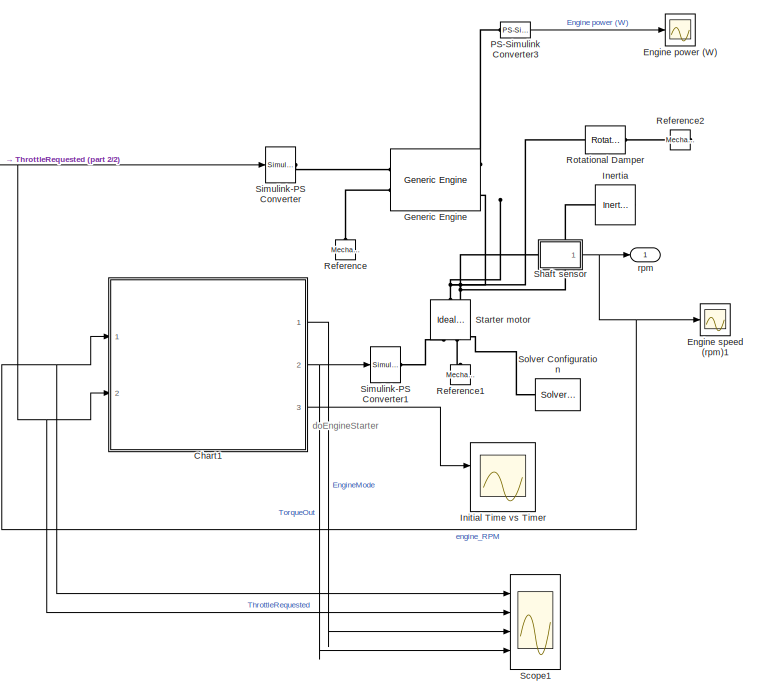
[diagram: root canvas - part 1/2, right side, full height]
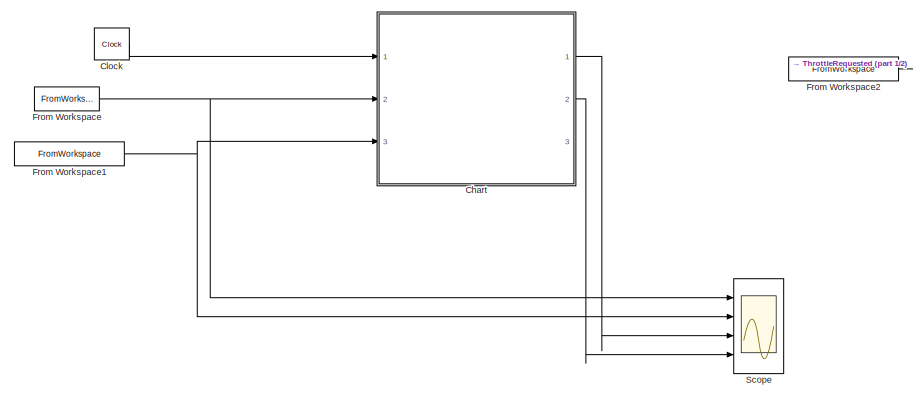
[diagram: root canvas - part 2/2, middle left region]
MODEL slx_adb9a68aac65
KIND model
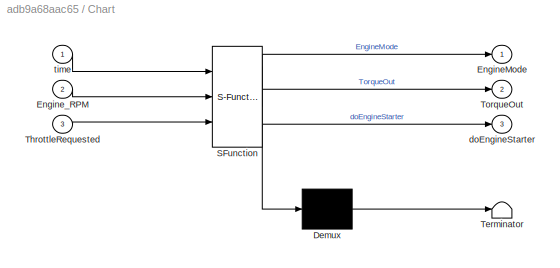
BLOCK [SubSystem] Chart
  Commented = on
  ErrorFcn = Stateflow.Translate.translate
  PermitHierarchicalResolution = ExplicitOnly
  Ports = [3, 3]
  RequestExecContextInheritance = off
  SFBlockType = Chart
  TreatAsAtomicUnit = on
BLOCK [Demux] Chart/ Demux 
  Outputs = 1
  Ports = [1, 1]
BLOCK [S-Function] Chart/ SFunction 
  EnableBusSupport = on
  FunctionName = sf_sfun
  PortCounts = [3 4]
  Ports = [3, 4]
  Tag = Stateflow S-Function Learn_EngineStartStop_11252014 1
BLOCK [Terminator] Chart/ Terminator 
BLOCK [Outport] Chart/EngineMode
  IconDisplay = Port number
BLOCK [Inport] Chart/Engine_RPM
  IconDisplay = Port number
  Port = 2
BLOCK [Inport] Chart/ThrottleRequested
  IconDisplay = Port number
  Port = 3
BLOCK [Outport] Chart/TorqueOut
  IconDisplay = Port number
  Port = 2
BLOCK [Outport] Chart/doEngineStarter
  IconDisplay = Port number
  Port = 3
BLOCK [Inport] Chart/time
  IconDisplay = Port number
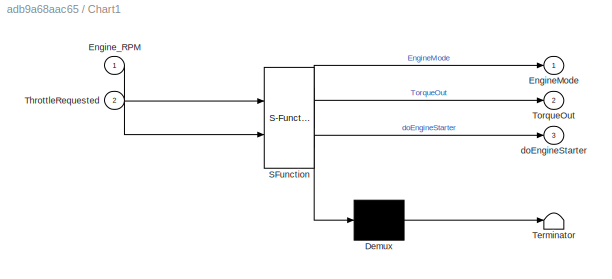
BLOCK [SubSystem] Chart1
  ErrorFcn = Stateflow.Translate.translate
  PermitHierarchicalResolution = ExplicitOnly
  Ports = [2, 3]
  RequestExecContextInheritance = off
  SFBlockType = Chart
  TreatAsAtomicUnit = on
BLOCK [Demux] Chart1/ Demux 
  Outputs = 1
  Ports = [1, 1]
BLOCK [S-Function] Chart1/ SFunction 
  EnableBusSupport = on
  FunctionName = sf_sfun
  PortCounts = [2 4]
  Ports = [2, 4]
  Tag = Stateflow S-Function Learn_EngineStartStop_11252014 2
BLOCK [Terminator] Chart1/ Terminator 
BLOCK [Outport] Chart1/EngineMode
  IconDisplay = Port number
BLOCK [Inport] Chart1/Engine_RPM
  IconDisplay = Port number
BLOCK [Inport] Chart1/ThrottleRequested
  IconDisplay = Port number
  Port = 2
BLOCK [Outport] Chart1/TorqueOut
  IconDisplay = Port number
  Port = 2
BLOCK [Outport] Chart1/doEngineStarter
  IconDisplay = Port number
  Port = 3
BLOCK [Clock] Clock
  Commented = on
BLOCK [Scope] Engine power (W)
  DataFormat = StructureWithTime
  Floating = off
  MaxDataPoints = 500000
  NumInputPorts = 1
  Ports = [1]
  SampleTime = 0.1
  SaveName = ScopeData1
  ShowLegends = off
  TimeRange = 150
  YMax = 150000
  YMin = -50000
  ZoomMode = xonly
BLOCK [Scope] Engine speed (rpm)1
  DataFormat = StructureWithTime
  Floating = off
  MaxDataPoints = 500000
  NumInputPorts = 1
  Ports = [1]
  SampleTime = 0.1
  SaveName = ScopeData6
  ShowLegends = off
  TimeRange = 150
  YMax = 4000
  YMin = 0
  ZoomMode = yonly
BLOCK [FromWorkspace] From Workspace
  Commented = on
  SampleTime = 0
  VariableName = Engine_RPM
  ZeroCross = on
BLOCK [FromWorkspace] From Workspace1
  Commented = on
  SampleTime = 0
  VariableName = ThrottleRequested
  ZeroCross = on
BLOCK [FromWorkspace] From Workspace2
  SampleTime = 0
  VariableName = ThrottleRequested
  ZeroCross = on
BLOCK [Reference] Generic Engine  REF=sdl_lib/Engines/Generic Engine
  ClassName = generic_engine
  ComponentPath = sdl.engines.generic_engine
  ComponentVariantNames = generic_engine
  ComponentVariants = sdl.engines.generic_engine
  LogSimulationData = off
  P_max = 10
  P_max_unit = HP
  Ports = [0, 0, 0, 0, 0, 2, 3]
  SchemaVersion = 1
  SourceBlock = sdl_lib/Engines/Generic Engine
  SourceFile = sdl.engines.generic_engine
  SourceType = Generic Engine
  T0 = 0
  T0_unit = 1
  bmep_tab = [ 0 250 500 625 750 1000 1.15e+3 1.25e+3 ]
  bmep_tab_unit = kPa
  bsfc_tab = [ 410 380 300 280 270 290 320 380; 410 370 290 270 260 270 285 320; 415 380 290 275 265 270 270 300; 420 390 310 290 285 280 280 285; 430 410 340 320 310 300 310 320; 450 430 370 340 330 330 350 380 ]
  bsfc_tab_unit = g/hr/kW
  displaced_volume = 400
  displaced_volume_unit = cm^3
  engine_type = 1
  engine_type_unit = 1
  fc_interp_method = 1
  fc_interp_method_unit = 1
  fc_model = 1
  fc_model_unit = 1
  fc_per_rev = 25
  fc_per_rev_unit = mg/rev
  fc_tab = [ 0.5 0.9 1.4 1.6 1.9 2.7 3.4 4.4; 1 1.7 2.7 3.1 3.6 5 6 7.4; 1.4 2.7 4 4.8 5.6 7.5 8.5 10.5; 2 3.6 5.8 6.7 8 10.4 11.7 13.3; 2.5 4.8 7.9 9.4 10.8 14 16.2 18.6; 3.1 6 10.3 11.9 13.8 18.4 22 26.5 ]
  fc_tab_unit = g/s
  fc_trq_tab = [ 0 80 160 200 240 320 360 400 ]
  fc_trq_tab_unit = N*m
  fc_w_tab = [ 1000 2e+3 3e+3 4e+3 5e+3 6e+3 ]
  fc_w_tab_unit = rpm
  idle_speed = 0
  idle_speed_reference = 1000
  idle_speed_reference_unit = rpm
  idle_speed_unit = 1
  idle_w_thr = 1
  idle_w_thr_unit = rpm
  inertia = 0.08
  inertia_unit = kg*m^2
  initial_velocity = 800
  initial_velocity_unit = rpm
  interp_method = 1
  interp_method_unit = 1
  model_inertia = 0
  model_inertia_unit = 1
  model_parameterization = 1
  model_parameterization_unit = 1
  model_time_constant = 1
  model_time_constant_unit = 1
  pwr_tab = [ 2e+4 4e+4 7.8e+4 1.2e+5 1.45e+5 1.48e+5 1.25e+5 6e+4 ]
  pwr_tab_unit = W
  rev_per_cycle = 2
  rev_per_cycle_unit = 1
  tau_controller = 1
  tau_controller_unit = s
  time_constant = 0.4
  time_constant_unit = s
  trq_tab = [ 380 380 380 380 350 280 200 80 ]
  trq_tab_unit = N*m
  w_P_max = 8000
  w_P_max_unit = rpm
  w_max = 9000
  w_max_unit = rpm
  w_min = 500
  w_min_unit = rpm
  w_tab = [ 500 1000 2e+3 3e+3 4e+3 5e+3 6e+3 7e+3 ]
  w_tab_unit = rpm
  w_thr = 100
  w_thr_unit = rpm
BLOCK [Reference] Inertia  REF=fl_lib/Mechanical/Rotational Elements/Inertia
  ClassName = inertia
  ComponentPath = foundation.mechanical.rotational.inertia
  ComponentVariantNames = inertia
  ComponentVariants = foundation.mechanical.rotational.inertia
  LogSimulationData = off
  Ports = [0, 0, 0, 0, 0, 1]
  SchemaVersion = 1
  SourceBlock = fl_lib/Mechanical/Rotational Elements/Inertia
  SourceFile = foundation.mechanical.rotational.inertia
  SourceType = Inertia
  inertia = 0.1
  inertia_unit = kg*m^2
  t = 0
  t_priority = High
  t_specify = off
  t_unit = N*m
  w = 0
  w_priority = High
  w_specify = off
  w_unit = rad/s
BLOCK [Scope] Initial Time vs Timer
  DataFormat = StructureWithTime
  Floating = off
  MaxDataPoints = 500000
  NumInputPorts = 2
  Ports = [2]
  SampleTime = 0.1
  SaveName = ScopeData3
  ShowLegends = off
  TimeRange = 100
  YMax = 1~1
  YMin = 0~-1
BLOCK [Reference] PS-Simulink Converter3  REF=nesl_utility/PS-Simulink
Converter
  AffineConversion = off
  Frequencies = []
  LeftPortType = input
  PhysicalDomain = network_engine_domain
  Ports = [0, 1, 0, 0, 0, 1]
  PseudoPeriodic = off
  RightPortType = output
  SourceBlock = nesl_utility/PS-Simulink\nConverter
  SourceType = PS-Simulink\nConverter
  SubClassName = ps_output
  Unit = W
BLOCK [Reference] Reference  REF=fl_lib/Mechanical/Rotational Elements/Mechanical
Rotational Reference
  ClassName = reference
  ComponentPath = foundation.mechanical.rotational.reference
  ComponentVariantNames = reference
  ComponentVariants = foundation.mechanical.rotational.reference
  LogSimulationData = off
  Ports = [0, 0, 0, 0, 0, 1]
  SchemaVersion = 1
  SourceBlock = fl_lib/Mechanical/Rotational Elements/Mechanical\nRotational Reference
  SourceFile = foundation.mechanical.rotational.reference
  SourceType = Mechanical\nRotational Reference
BLOCK [Reference] Reference1  REF=fl_lib/Mechanical/Rotational Elements/Mechanical
Rotational Reference
  ClassName = reference
  ComponentPath = foundation.mechanical.rotational.reference
  ComponentVariantNames = reference
  ComponentVariants = foundation.mechanical.rotational.reference
  LogSimulationData = off
  Ports = [0, 0, 0, 0, 0, 1]
  SchemaVersion = 1
  SourceBlock = fl_lib/Mechanical/Rotational Elements/Mechanical\nRotational Reference
  SourceFile = foundation.mechanical.rotational.reference
  SourceType = Mechanical\nRotational Reference
BLOCK [Reference] Reference2  REF=fl_lib/Mechanical/Rotational Elements/Mechanical
Rotational Reference
  ClassName = reference
  ComponentPath = foundation.mechanical.rotational.reference
  ComponentVariantNames = reference
  ComponentVariants = foundation.mechanical.rotational.reference
  LogSimulationData = off
  Ports = [0, 0, 0, 0, 0, 1]
  SchemaVersion = 1
  SourceBlock = fl_lib/Mechanical/Rotational Elements/Mechanical\nRotational Reference
  SourceFile = foundation.mechanical.rotational.reference
  SourceType = Mechanical\nRotational Reference
BLOCK [Reference] Rotational Damper  REF=fl_lib/Mechanical/Rotational Elements/Rotational Damper
  ClassName = damper
  ComponentPath = foundation.mechanical.rotational.damper
  ComponentVariantNames = damper
  ComponentVariants = foundation.mechanical.rotational.damper
  D = 0.02
  D_unit = N*m/(rad/s)
  LogSimulationData = off
  Ports = [0, 0, 0, 0, 0, 1, 1]
  SchemaVersion = 1
  SourceBlock = fl_lib/Mechanical/Rotational Elements/Rotational Damper
  SourceFile = foundation.mechanical.rotational.damper
  SourceType = Rotational Damper
  t = 0
  t_priority = High
  t_specify = off
  t_unit = N*m
  w = 0
  w_priority = High
  w_specify = off
  w_unit = rad/s
BLOCK [Scope] Scope
  Commented = on
  Floating = off
  NumInputPorts = 4
  Ports = [4]
  ShowLegends = off
  YMax = 10000~1~3~5
  YMin = 0~0~1~0
BLOCK [Scope] Scope1
  Floating = off
  LimitDataPoints = off
  NumInputPorts = 4
  Ports = [4]
  SaveName = ScopeData2
  ShowLegends = off
  YMax = 5000~1~3~10
  YMin = 0~0~1~0
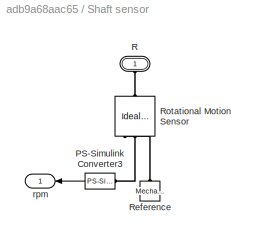
BLOCK [SubSystem] Shaft sensor
  Ports = [0, 1, 0, 0, 0, 1]
  RequestExecContextInheritance = off
BLOCK [Reference] Shaft sensor/PS-Simulink Converter3  REF=nesl_utility/PS-Simulink
Converter
  AffineConversion = off
  Frequencies = []
  LeftPortType = input
  PhysicalDomain = network_engine_domain
  Ports = [0, 1, 0, 0, 0, 1]
  PseudoPeriodic = off
  RightPortType = output
  SourceBlock = nesl_utility/PS-Simulink\nConverter
  SourceType = PS-Simulink\nConverter
  SubClassName = ps_output
  Unit = rpm
BLOCK [PMIOPort] Shaft sensor/R
  Port = 1
  Side = Left
BLOCK [Reference] Shaft sensor/Reference  REF=fl_lib/Mechanical/Rotational Elements/Mechanical
Rotational Reference
  ClassName = reference
  ComponentPath = foundation.mechanical.rotational.reference
  ComponentVariantNames = reference
  ComponentVariants = foundation.mechanical.rotational.reference
  LogSimulationData = off
  Ports = [0, 0, 0, 0, 0, 1]
  SchemaVersion = 1
  SourceBlock = fl_lib/Mechanical/Rotational Elements/Mechanical\nRotational Reference
  SourceFile = foundation.mechanical.rotational.reference
  SourceType = Mechanical\nRotational Reference
BLOCK [Reference] Shaft sensor/Rotational Motion Sensor  REF=fl_lib/Mechanical/Mechanical Sensors/Ideal Rotational
Motion Sensor
  ClassName = angular_velocity
  ComponentPath = foundation.mechanical.sensors.angular_velocity
  ComponentVariantNames = angular_velocity
  ComponentVariants = foundation.mechanical.sensors.angular_velocity
  LogSimulationData = off
  Ports = [0, 0, 0, 0, 0, 1, 3]
  SchemaVersion = 1
  SourceBlock = fl_lib/Mechanical/Mechanical Sensors/Ideal Rotational\nMotion Sensor
  SourceFile = foundation.mechanical.sensors.angular_velocity
  SourceType = Ideal Rotational\nMotion Sensor
  offset = 0
  offset_unit = rad
BLOCK [Outport] Shaft sensor/rpm
  IconDisplay = Port number
BLOCK [Reference] Simulink-PS Converter  REF=nesl_utility/Simulink-PS
Converter
  AffineConversion = off
  Frequencies = []
  InputFilterTimeConstant = .001
  InputFiltering = off
  LeftPortType = input
  NoiseDistribution = none
  NoiseParameters = []
  PhysicalDomain = network_engine_domain
  Ports = [1, 0, 0, 0, 0, 0, 1]
  PseudoPeriodic = off
  RightPortType = output
  SimscapeFilterOrder = 1
  SourceBlock = nesl_utility/Simulink-PS\nConverter
  SourceType = Simulink-PS\nConverter
  SubClassName = ps_input
  UdotUserProvided = []
  Unit = 1
BLOCK [Reference] Simulink-PS Converter1  REF=nesl_utility/Simulink-PS
Converter
  AffineConversion = off
  Frequencies = []
  InputFilterTimeConstant = 0.001
  InputFiltering = on
  LeftPortType = input
  NoiseDistribution = none
  NoiseParameters = []
  PhysicalDomain = network_engine_domain
  Ports = [1, 0, 0, 0, 0, 0, 1]
  PseudoPeriodic = off
  RightPortType = output
  SimscapeFilterOrder = 1
  SourceBlock = nesl_utility/Simulink-PS\nConverter
  SourceType = Simulink-PS\nConverter
  SubClassName = ps_input
  UdotUserProvided = 1
  Unit = N*m
BLOCK [Reference] Solver Configuration  REF=nesl_utility/Solver
Configuration
  AbsTol = 1e-06
  Accelerate = off
  AutomaticFiltering = on
  DelaysMemoryBudget = 1024
  DoDC = off
  DoFixedCost = on
  EnableSwitchedLinearOptims = on
  FilteringTimeConstant = 0.001
  FrequencyDomain = off
  Harmonics = []
  LeftPortType = input
  LinearAlgebra = Sparse
  LocalSolverChoice = NE_BACKWARD_EULER_ADVANCER
  LocalSolverSampleTime = 0.001
  MaxModeIter = 2
  MaxNonlinIter = 3
  MinStep = 1e-09
  PhysicalDomain = network_engine_domain
  Ports = [0, 0, 0, 0, 0, 0, 1]
  Profile = off
  RelTol = 0.001
  ResidualTolerance = 1e-09
  RightPortType = generic
  SimulateNoise = off
  SourceBlock = nesl_utility/Solver\nConfiguration
  SourceType = Solver\nConfiguration
  SubClassName = solver
  ToWorkspace = off
  Tones = []
  UseCCode = off
  UseLocalSampling = off
  UseLocalSolver = on
BLOCK [Reference] Starter motor  REF=fl_lib/Mechanical/Mechanical Sources/Ideal Torque Source
  ClassName = torque
  ComponentPath = foundation.mechanical.sources.torque
  ComponentVariantNames = torque
  ComponentVariants = foundation.mechanical.sources.torque
  LogSimulationData = off
  Ports = [0, 0, 0, 0, 0, 1, 2]
  SchemaVersion = 1
  SourceBlock = fl_lib/Mechanical/Mechanical Sources/Ideal Torque Source
  SourceFile = foundation.mechanical.sources.torque
  SourceType = Ideal Torque Source
BLOCK [Outport] rpm
  IconDisplay = Port number
ANNOTATION (root): doEngineStarter
LINE Chart1:1 -> Scope1:3
NET Chart1:2 -> Scope1:4, Simulink-PS Converter1:1
LINE Chart1:3 -> Initial Time vs Timer:1
LINE Chart:1 -> Scope:3
LINE Chart:2 -> Scope:4
LINE Clock:1 -> Chart:1
NET From Workspace1:1 -> Chart:3, Scope:2
NET From Workspace2:1 -> Chart1:2, Scope1:2, Simulink-PS Converter:1
NET From Workspace:1 -> Chart:2, Scope:1
LINE PS-Simulink Converter3:1 -> Engine power (W):1
LINE Shaft sensor/PS-Simulink Converter3:1 -> Shaft sensor/rpm:1
NET Shaft sensor:1 -> Chart1:1, Engine speed (rpm)1:1, Scope1:1, rpm:1
PLINE Generic Engine:LConn1 -- Simulink-PS Converter:RConn1
PLINE Generic Engine:LConn2 -- Reference:LConn1
PLINE Generic Engine:RConn1 -- PS-Simulink Converter3:LConn1
PNET net1: Generic Engine:RConn3 -- Inertia:LConn1 -- Rotational Damper:LConn1 -- Shaft sensor:LConn1 -- Starter motor:LConn1
PNET net2: Reference1:LConn1 -- Solver Configuration:RConn1 -- Starter motor:RConn2
PLINE Reference2:LConn1 -- Rotational Damper:RConn1
PLINE Shaft sensor/PS-Simulink Converter3:LConn1 -- Shaft sensor/Rotational Motion Sensor:RConn2
PLINE Shaft sensor/R:RConn1 -- Shaft sensor/Rotational Motion Sensor:LConn1
PLINE Shaft sensor/Reference:LConn1 -- Shaft sensor/Rotational Motion Sensor:RConn1
PLINE Simulink-PS Converter1:RConn1 -- Starter motor:RConn1
note: NET lines group one-source signal fan-out (src -> all destinations, sorted); 1:1 wires keep LINE; PNET lines group multi-terminal physical nets as a canonical sorted terminal list (undirected conserving connections); 2-terminal nets keep the pairwise PLINE form
CHART Chart states=3 transitions=4
  STATE_LABEL 'ENGINE_STOP\nentry:\nEngineMode  = STOP;'
  STATE_LABEL 'ENGINE_StartRequest\nentry:\nEngineMode = StartRequest;\nIntialTimer = time;\nduring:\nif(time - IntialTimer < 1)\n    doEngineStarter = 1;\n    \nend\nif doEngineStarter\n    TorqueOut = 5;\nelse\n    TorqueOut = 0;\nend'
  STATE_LABEL 'ENGINE_Run\nentry:\nEngineMode = Run;\ndoEngineStarter = 0;\nTorqueOut = 0;'
CHART Chart1 states=3 transitions=6
  STATE_LABEL 'ENGINE_STOP\nentry:\nEngineMode  = STOP;'
  STATE_LABEL 'ENGINE_StartRequest\nentry:\nEngineMode = StartRequest;\nduring:\nif before(1,sec)\n    doEngineStarter = 1;\nelse\n    doEngineStarter = 0;\nend\nif doEngineStarter\n    TorqueOut = 10;\nelse\n    TorqueOut = 0;\nend'
  STATE_LABEL 'ENGINE_Run\nentry:\nEngineMode = Run;\ndoEngineStarter = 0;\nTorqueOut = 0;'
